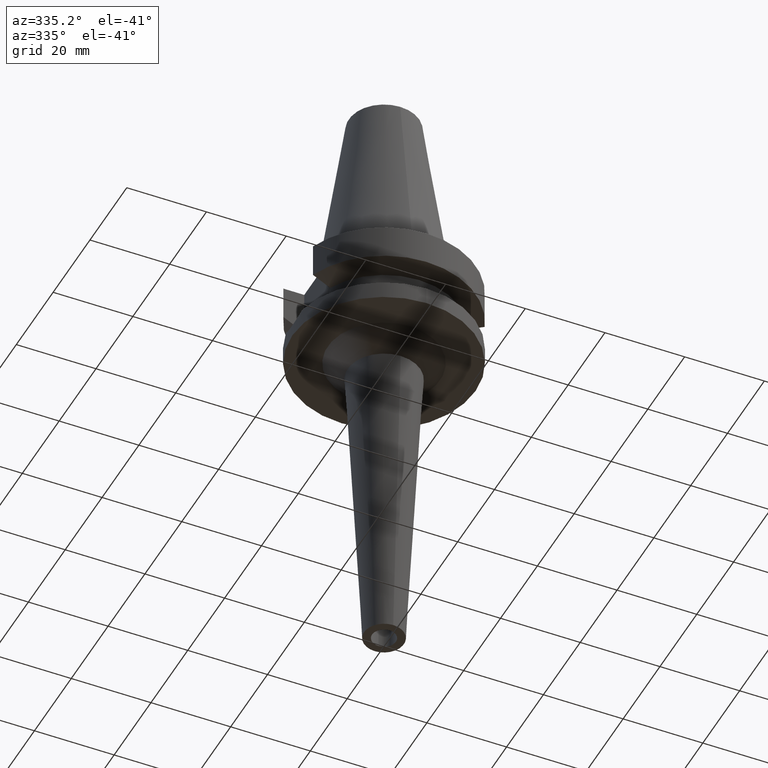
[diagram: clean part render]
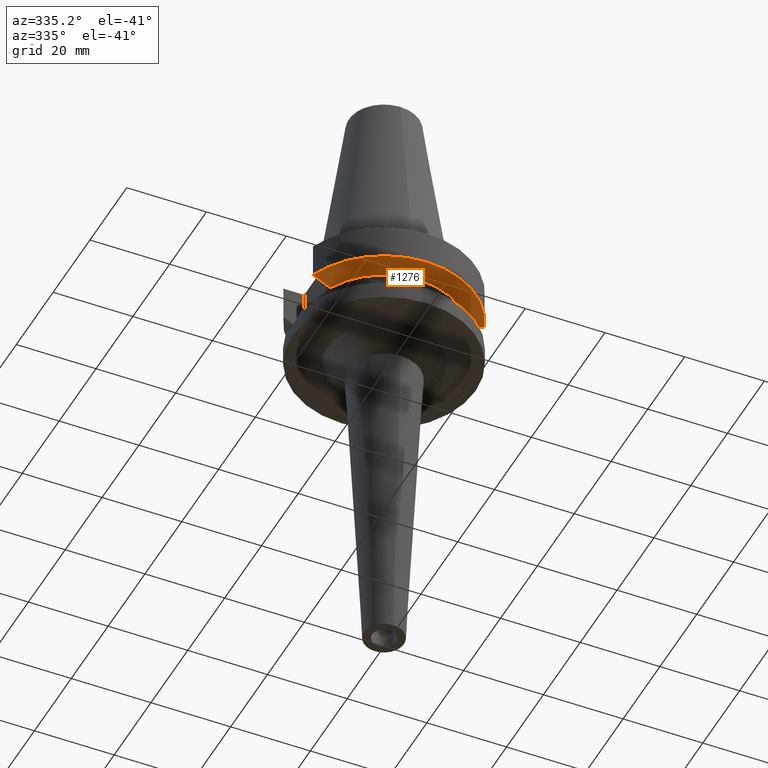
[diagram: same view with one face highlighted and labeled with its STEP entity id]
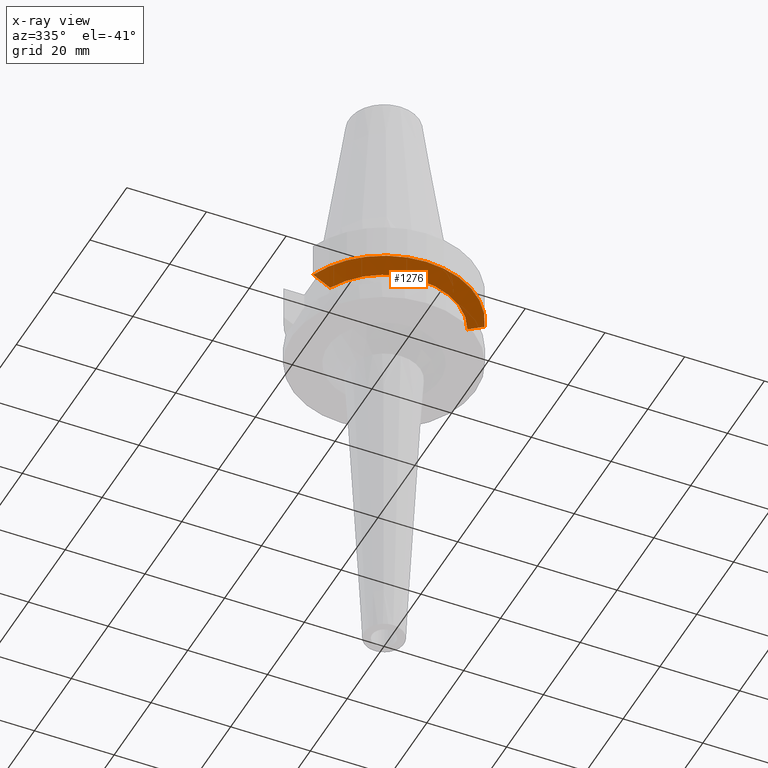
[diagram: x-ray of the same camera — body ghosted, the highlighted face saturated]
A machine part, auxiliary view. The second image highlights one B-rep face of the part: STEP entity #1276.
The next image is the same camera in x-ray: the body ghosted, the highlighted face saturated — about 0% of this face is hidden behind the body in this view.
In plain terms, the highlighted conical surface has half-angle 60 deg.
Its self-contained STEP definition (entity closure, byte-faithful):
#200=CARTESIAN_POINT('',(-2.154524325238E1,-8.049999577366E0,
-9.567211146629E0));
#201=CARTESIAN_POINT('',(-2.125934146996E1,-8.049999577366E0,
-9.721836180469E0));
#202=CARTESIAN_POINT('',(-2.068725319579E1,-8.049999439639E0,
-1.003056889170E1));
#203=CARTESIAN_POINT('',(-1.982793088310E1,-8.050002595215E0,
-1.049144078749E1));
#204=CARTESIAN_POINT('',(-1.925438162569E1,-8.049994318073E0,
-1.079747462469E1));
#205=CARTESIAN_POINT('',(-1.896738966520E1,-8.049994318073E0,
-1.095000099925E1));
#217=CARTESIAN_POINT('',(0.E0,1.093341284897E-14,-9.567208369711E0));
#218=DIRECTION('',(0.E0,0.E0,1.E0));
#219=DIRECTION('',(-9.367496997597E-1,-3.500000000001E-1,0.E0));
#220=AXIS2_PLACEMENT_3D('',#217,#218,#219);
#225=CARTESIAN_POINT('',(0.E0,1.093341284897E-14,-9.567208369711E0));
#226=DIRECTION('',(0.E0,0.E0,1.E0));
#227=DIRECTION('',(0.E0,-1.E0,0.E0));
#228=AXIS2_PLACEMENT_3D('',#225,#226,#227);
#233=CARTESIAN_POINT('',(1.896736186694E1,-8.050001277873E0,-1.094999977540E1));
#234=CARTESIAN_POINT('',(1.877435788408E1,-8.050001277873E0,-1.105257472423E1));
#235=CARTESIAN_POINT('',(1.838865476369E1,-8.046082019801E0,-1.125795281918E1));
#236=CARTESIAN_POINT('',(1.781119204546E1,-8.028323726412E0,-1.156685916138E1));
#237=CARTESIAN_POINT('',(1.742708427631E1,-8.008477147751E0,-1.177326090514E1));
#238=CARTESIAN_POINT('',(1.723531135314E1,-7.996501749112E0,-1.187660739353E1));
#243=CARTESIAN_POINT('',(0.E0,1.093341284897E-14,-1.187660944647E1));
#244=DIRECTION('',(0.E0,0.E0,-1.E0));
#245=DIRECTION('',(9.071218755694E-1,-4.208680349747E-1,0.E0));
#246=AXIS2_PLACEMENT_3D('',#243,#244,#245);
#251=CARTESIAN_POINT('',(0.E0,1.093341284897E-14,-1.187660944647E1));
#252=DIRECTION('',(0.E0,0.E0,-1.E0));
#253=DIRECTION('',(0.E0,-1.E0,0.E0));
#254=AXIS2_PLACEMENT_3D('',#251,#252,#253);
#259=CARTESIAN_POINT('',(-1.723531622871E1,-7.996491146968E0,
-1.187660607766E1));
#260=CARTESIAN_POINT('',(-1.742711751359E1,-8.008468272466E0,
-1.177324424037E1));
#261=CARTESIAN_POINT('',(-1.781125610054E1,-8.028331856145E0,
-1.156681091071E1));
#262=CARTESIAN_POINT('',(-1.838870194717E1,-8.046085192099E0,
-1.125790844380E1));
#263=CARTESIAN_POINT('',(-1.877442071800E1,-8.049994318073E0,
-1.105255737005E1));
#264=CARTESIAN_POINT('',(-1.896738966520E1,-8.049994318073E0,
-1.095000099925E1));
#283=CARTESIAN_POINT('',(1.896736186694E1,-8.050001277873E0,-1.094999977540E1));
#284=CARTESIAN_POINT('',(1.925439178280E1,-8.050001277873E0,-1.079745329166E1));
#285=CARTESIAN_POINT('',(1.982795252656E1,-8.049999682934E0,-1.049150139893E1));
#286=CARTESIAN_POINT('',(2.068728862309E1,-8.049999192921E0,-1.003062464902E1));
#287=CARTESIAN_POINT('',(2.125933007629E1,-8.050002094562E0,-9.721825273558E0));
#288=CARTESIAN_POINT('',(2.154524231188E1,-8.050002094562E0,-9.567194606553E0));
#492=CARTESIAN_POINT('',(1.723531135314E1,-7.996501749112E0,-1.187660739353E1));
#1043=VERTEX_POINT('',#492);
#1044=VERTEX_POINT('',#233);
#1071=CARTESIAN_POINT('',(-1.896738966520E1,-8.049994318073E0,
-1.095000099925E1));
#1072=VERTEX_POINT('',#1071);
#1073=VERTEX_POINT('',#259);
#1074=CARTESIAN_POINT('',(0.E0,-1.9E1,-1.187660944647E1));
#1075=VERTEX_POINT('',#1074);
#1078=VERTEX_POINT('',#200);
#1079=CARTESIAN_POINT('',(0.E0,-2.3E1,-9.567208369711E0));
#1080=CARTESIAN_POINT('',(2.154524309447E1,-8.050000000001E0,
-9.567208369711E0));
#1081=VERTEX_POINT('',#1079);
#1082=VERTEX_POINT('',#1080);
#1254=CARTESIAN_POINT('',(0.E0,1.093341284897E-14,-1.072190890809E1));
#1255=DIRECTION('',(0.E0,0.E0,1.E0));
#1256=DIRECTION('',(0.E0,1.E0,0.E0));
#1257=AXIS2_PLACEMENT_3D('',#1254,#1255,#1256);
#1258=CONICAL_SURFACE('',#1257,2.1E1,6.E1);
#1259=ORIENTED_EDGE('',*,*,#1243,.F.);
#1261=ORIENTED_EDGE('',*,*,#1260,.T.);
#1263=ORIENTED_EDGE('',*,*,#1262,.T.);
#1265=ORIENTED_EDGE('',*,*,#1264,.F.);
#1267=ORIENTED_EDGE('',*,*,#1266,.T.);
#1269=ORIENTED_EDGE('',*,*,#1268,.T.);
#1271=ORIENTED_EDGE('',*,*,#1270,.T.);
#1273=ORIENTED_EDGE('',*,*,#1272,.T.);
#1274=EDGE_LOOP('',(#1259,#1261,#1263,#1265,#1267,#1269,#1271,#1273));
#1275=FACE_OUTER_BOUND('',#1274,.F.);
#206=B_SPLINE_CURVE_WITH_KNOTS('',3,(#200,#201,#202,#203,#204,#205),
.UNSPECIFIED.,.F.,.F.,(4,1,1,4),(0.E0,3.333333333333E-1,6.666666666667E-1,1.E0),
.UNSPECIFIED.);
#221=CIRCLE('',#220,2.3E1);
#229=CIRCLE('',#228,2.3E1);
#239=B_SPLINE_CURVE_WITH_KNOTS('',3,(#233,#234,#235,#236,#237,#238),
.UNSPECIFIED.,.F.,.F.,(4,1,1,4),(0.E0,3.333333333333E-1,6.666666666667E-1,1.E0),
.UNSPECIFIED.);
#247=CIRCLE('',#246,1.9E1);
#255=CIRCLE('',#254,1.9E1);
#265=B_SPLINE_CURVE_WITH_KNOTS('',3,(#259,#260,#261,#262,#263,#264),
.UNSPECIFIED.,.F.,.F.,(4,1,1,4),(0.E0,3.333333333333E-1,6.666666666667E-1,1.E0),
.UNSPECIFIED.);
#289=B_SPLINE_CURVE_WITH_KNOTS('',3,(#283,#284,#285,#286,#287,#288),
.UNSPECIFIED.,.F.,.F.,(4,1,1,4),(0.E0,3.333333333333E-1,6.666666666667E-1,1.E0),
.UNSPECIFIED.);
#1243=EDGE_CURVE('',#1078,#1072,#206,.T.);
#1260=EDGE_CURVE('',#1078,#1081,#221,.T.);
#1262=EDGE_CURVE('',#1081,#1082,#229,.T.);
#1264=EDGE_CURVE('',#1044,#1082,#289,.T.);
#1266=EDGE_CURVE('',#1044,#1043,#239,.T.);
#1268=EDGE_CURVE('',#1043,#1075,#247,.T.);
#1270=EDGE_CURVE('',#1075,#1073,#255,.T.);
#1272=EDGE_CURVE('',#1073,#1072,#265,.T.);
#1276=ADVANCED_FACE('',(#1275),#1258,.T.);